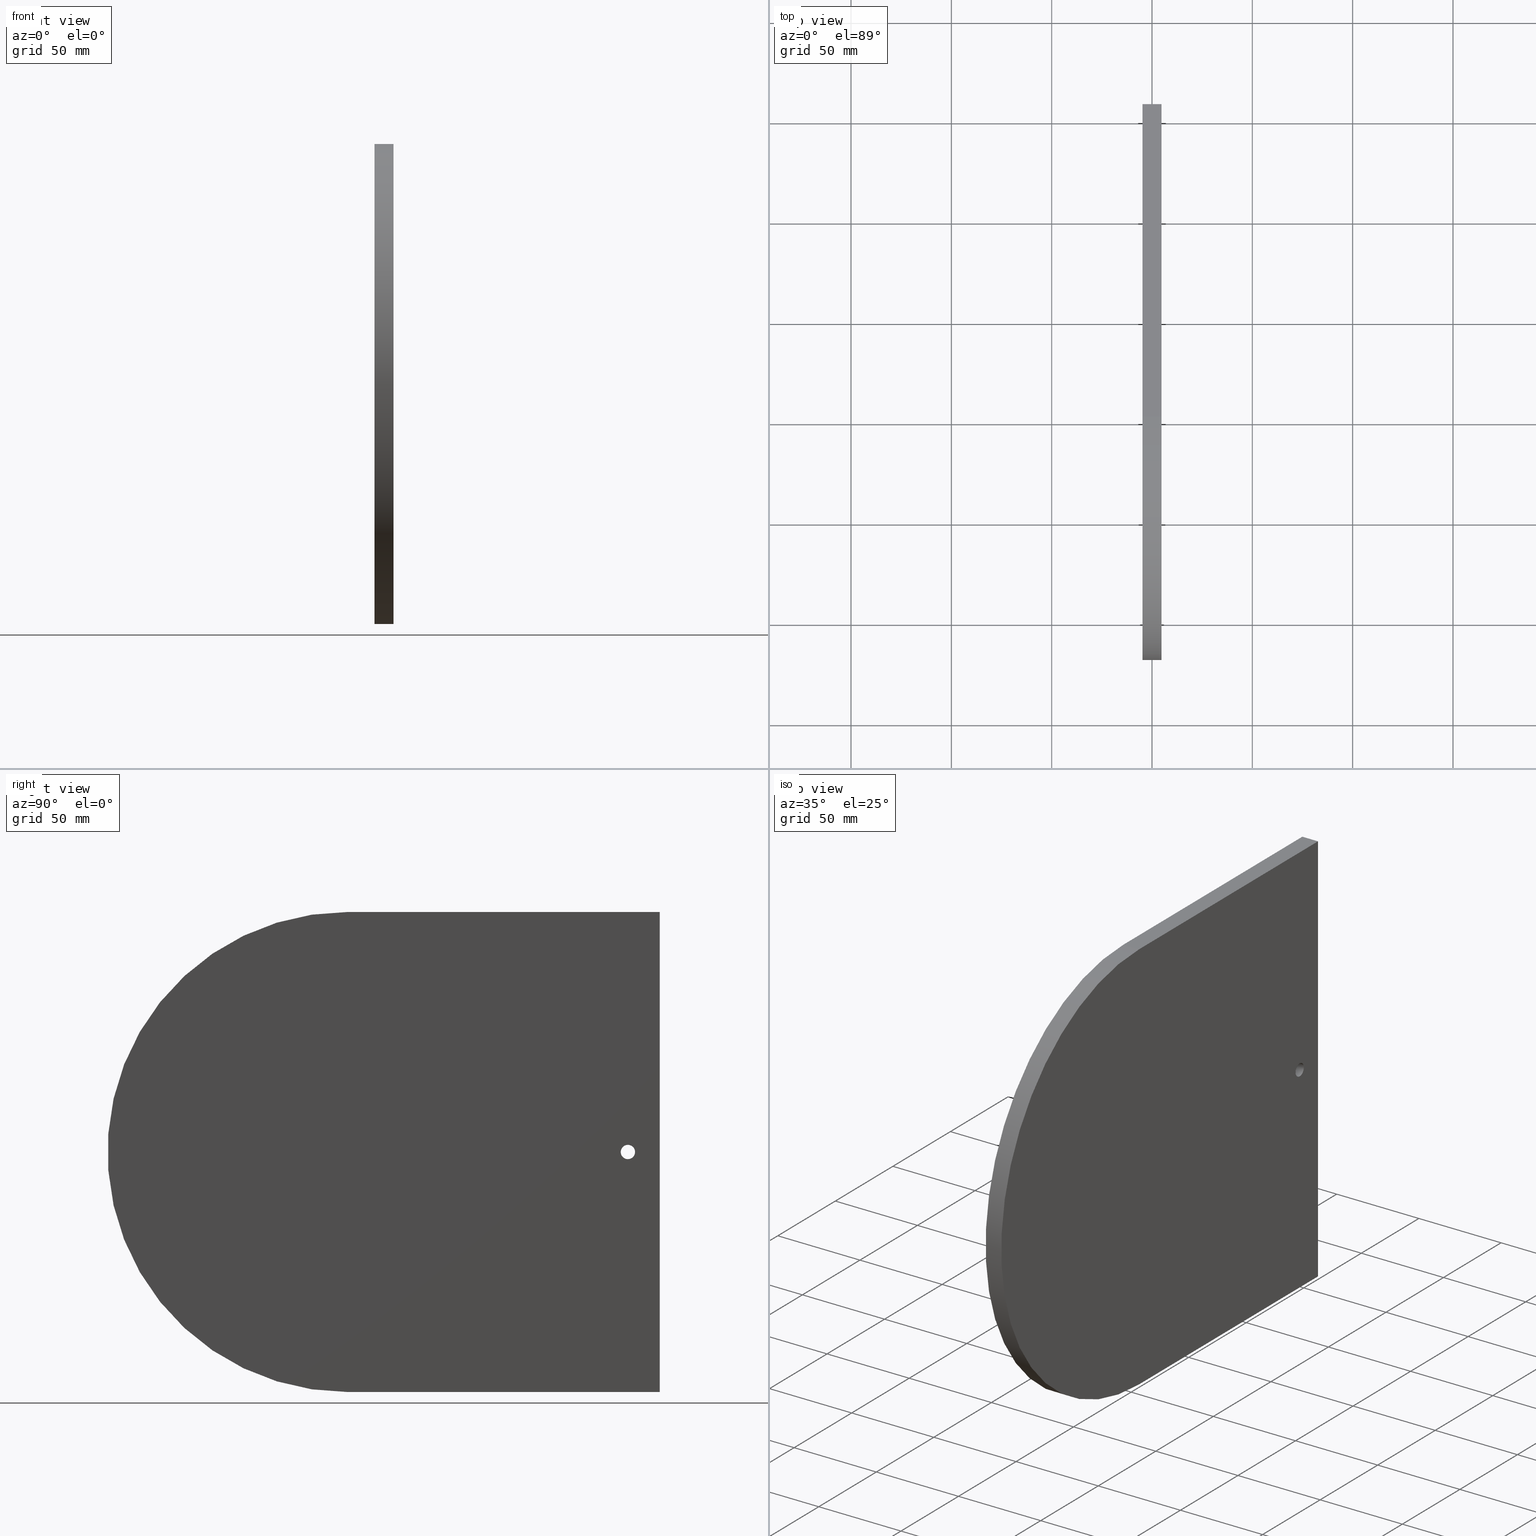
[diagram: canonical four-view strip — front | top / right | iso, engineering-drawing reading convention]
A machine part, canonical four-view strip (front | top / right | iso — engineering-drawing reading convention). The complete STEP part file that produces these views, byte-faithful:
ISO-10303-21;
HEADER;
FILE_DESCRIPTION (( 'STEP AP203' ),
    '1' );
FILE_NAME ('D080366-v1_aLIGO_VE_Viewport Guard Shield.STEP',
    '2009-12-22T20:03:17',
    ( ' ' ),
    ( ' ' ),
    'SwSTEP 2.0',
    'SolidWorks 2009',
    '' );
FILE_SCHEMA (( 'CONFIG_CONTROL_DESIGN' ));
ENDSEC;

DATA;
#1 = ORIENTED_EDGE ( 'NONE', *, *, #2, .F. ) ;
#2 = EDGE_CURVE ( 'NONE', #3, #73, #139, .T. ) ;
#3 = VERTEX_POINT ( 'NONE', #135 ) ;
#4 = ORIENTED_EDGE ( 'NONE', *, *, #5, .T. ) ;
#5 = EDGE_CURVE ( 'NONE', #3, #6, #134, .T. ) ;
#6 = VERTEX_POINT ( 'NONE', #130 ) ;
#7 = ORIENTED_EDGE ( 'NONE', *, *, #8, .T. ) ;
#8 = EDGE_CURVE ( 'NONE', #6, #72, #129, .T. ) ;
#9 = ADVANCED_FACE ( 'NONE', ( #125 ), #124, .F. ) ;
#10 = EDGE_LOOP ( 'NONE', ( #11, #16, #18, #151 ) ) ;
#11 = ORIENTED_EDGE ( 'NONE', *, *, #12, .F. ) ;
#12 = EDGE_CURVE ( 'NONE', #13, #14, #119, .T. ) ;
#13 = VERTEX_POINT ( 'NONE', #115 ) ;
#14 = VERTEX_POINT ( 'NONE', #114 ) ;
#15 = VERTEX_POINT ( 'NONE', #113 ) ;
#16 = ORIENTED_EDGE ( 'NONE', *, *, #17, .F. ) ;
#17 = EDGE_CURVE ( 'NONE', #15, #13, #112, .T. ) ;
#18 = ORIENTED_EDGE ( 'NONE', *, *, #19, .T. ) ;
#19 = EDGE_CURVE ( 'NONE', #15, #150, #108, .T. ) ;
#20 = MANIFOLD_SOLID_BREP ( 'NONE', #87 ) ;
#21 = ADVANCED_FACE ( 'NONE', ( #104 ), #103, .F. ) ;
#22 = EDGE_LOOP ( 'NONE', ( #23, #27, #30, #66 ) ) ;
#23 = ORIENTED_EDGE ( 'NONE', *, *, #24, .F. ) ;
#24 = EDGE_CURVE ( 'NONE', #25, #26, #60, .T. ) ;
#25 = VERTEX_POINT ( 'NONE', #55 ) ;
#26 = VERTEX_POINT ( 'NONE', #54 ) ;
#27 = ORIENTED_EDGE ( 'NONE', *, *, #28, .T. ) ;
#28 = EDGE_CURVE ( 'NONE', #25, #29, #53, .T. ) ;
#29 = VERTEX_POINT ( 'NONE', #49 ) ;
#30 = ORIENTED_EDGE ( 'NONE', *, *, #64, .T. ) ;
#31 = EDGE_CURVE ( 'NONE', #13, #73, #48, .T. ) ;
#32 = ORIENTED_EDGE ( 'NONE', *, *, #12, .T. ) ;
#33 = ORIENTED_EDGE ( 'NONE', *, *, #31, .F. ) ;
#34 = DIRECTION ( 'NONE',  ( 1.000000000000000000, -0.0000000000000000000, -0.0000000000000000000 ) ) ;
#35 = VECTOR ( 'NONE', #34, 39.37007874015748100 ) ;
#36 = CARTESIAN_POINT ( 'NONE',  ( -0.1875000000000000300, 5.500000000000000000, -0.1406250000000001400 ) ) ;
#37 = LINE ( 'NONE', #36, #35 ) ;
#38 = CARTESIAN_POINT ( 'NONE',  ( 0.1875000000000000300, 5.500000000000000000, -0.1406250000000001400 ) ) ;
#39 = DIRECTION ( 'NONE',  ( 0.0000000000000000000, 0.0000000000000000000, -1.000000000000000000 ) ) ;
#40 = DIRECTION ( 'NONE',  ( 1.000000000000000000, 0.0000000000000000000, 0.0000000000000000000 ) ) ;
#41 = CARTESIAN_POINT ( 'NONE',  ( 0.1875000000000000300, 5.500000000000000000, 0.0000000000000000000 ) ) ;
#42 = AXIS2_PLACEMENT_3D ( 'NONE', #41, #40, #39 ) ;
#43 = CIRCLE ( 'NONE', #42, 0.1406250000000001400 ) ;
#44 = DIRECTION ( 'NONE',  ( 0.0000000000000000000, 0.0000000000000000000, -1.000000000000000000 ) ) ;
#45 = DIRECTION ( 'NONE',  ( -1.000000000000000000, -0.0000000000000000000, -0.0000000000000000000 ) ) ;
#46 = CARTESIAN_POINT ( 'NONE',  ( 0.1875000000000000300, 0.0000000000000000000, 0.0000000000000000000 ) ) ;
#47 = AXIS2_PLACEMENT_3D ( 'NONE', #46, #45, #44 ) ;
#48 = CIRCLE ( 'NONE', #47, 4.709374999999999600 ) ;
#49 = CARTESIAN_POINT ( 'NONE',  ( 0.1875000000000000300, 5.500000000000000000, 0.1406250000000001400 ) ) ;
#50 = DIRECTION ( 'NONE',  ( 1.000000000000000000, -0.0000000000000000000, -0.0000000000000000000 ) ) ;
#51 = VECTOR ( 'NONE', #50, 39.37007874015748100 ) ;
#52 = CARTESIAN_POINT ( 'NONE',  ( -0.1875000000000000300, 5.500000000000000000, 0.1406250000000001400 ) ) ;
#53 = LINE ( 'NONE', #52, #51 ) ;
#54 = CARTESIAN_POINT ( 'NONE',  ( -0.1875000000000000300, 5.500000000000000000, -0.1406250000000001400 ) ) ;
#55 = CARTESIAN_POINT ( 'NONE',  ( -0.1875000000000000300, 5.500000000000000000, 0.1406250000000001400 ) ) ;
#56 = DIRECTION ( 'NONE',  ( 0.0000000000000000000, 0.0000000000000000000, -1.000000000000000000 ) ) ;
#57 = DIRECTION ( 'NONE',  ( 1.000000000000000000, 0.0000000000000000000, 0.0000000000000000000 ) ) ;
#58 = CARTESIAN_POINT ( 'NONE',  ( -0.1875000000000000300, 5.500000000000000000, 0.0000000000000000000 ) ) ;
#59 = AXIS2_PLACEMENT_3D ( 'NONE', #58, #57, #56 ) ;
#60 = CIRCLE ( 'NONE', #59, 0.1406250000000001400 ) ;
#61 = DIRECTION ( 'NONE',  ( 0.0000000000000000000, 0.0000000000000000000, -1.000000000000000000 ) ) ;
#62 = DIRECTION ( 'NONE',  ( 1.000000000000000000, -0.0000000000000000000, -0.0000000000000000000 ) ) ;
#63 = AXIS2_PLACEMENT_3D ( 'NONE', #102, #62, #61 ) ;
#64 = EDGE_CURVE ( 'NONE', #29, #65, #43, .T. ) ;
#65 = VERTEX_POINT ( 'NONE', #38 ) ;
#66 = ORIENTED_EDGE ( 'NONE', *, *, #67, .F. ) ;
#67 = EDGE_CURVE ( 'NONE', #26, #65, #37, .T. ) ;
#68 = ADVANCED_FACE ( 'NONE', ( #179 ), #181, .F. ) ;
#69 = EDGE_LOOP ( 'NONE', ( #70, #1, #4, #7 ) ) ;
#70 = ORIENTED_EDGE ( 'NONE', *, *, #71, .T. ) ;
#71 = EDGE_CURVE ( 'NONE', #72, #73, #177, .T. ) ;
#72 = VERTEX_POINT ( 'NONE', #315 ) ;
#73 = VERTEX_POINT ( 'NONE', #314 ) ;
#74 = ORIENTED_EDGE ( 'NONE', *, *, #88, .F. ) ;
#75 = ORIENTED_EDGE ( 'NONE', *, *, #17, .T. ) ;
#76 = ORIENTED_EDGE ( 'NONE', *, *, #31, .T. ) ;
#77 = ORIENTED_EDGE ( 'NONE', *, *, #71, .F. ) ;
#78 = ADVANCED_FACE ( 'NONE', ( #313 ), #312, .F. ) ;
#79 = EDGE_LOOP ( 'NONE', ( #80, #81, #82, #86 ) ) ;
#80 = ORIENTED_EDGE ( 'NONE', *, *, #28, .F. ) ;
#81 = ORIENTED_EDGE ( 'NONE', *, *, #96, .F. ) ;
#82 = ORIENTED_EDGE ( 'NONE', *, *, #67, .T. ) ;
#83 = ORIENTED_EDGE ( 'NONE', *, *, #88, .T. ) ;
#84 = ADVANCED_FACE ( 'NONE', ( #168 ), #174, .T. ) ;
#85 = EDGE_LOOP ( 'NONE', ( #76, #77, #74, #75 ) ) ;
#86 = ORIENTED_EDGE ( 'NONE', *, *, #149, .T. ) ;
#87 = CLOSED_SHELL ( 'NONE', ( #21, #68, #9, #153, #146, #94, #84, #78 ) ) ;
#88 = EDGE_CURVE ( 'NONE', #15, #72, #169, .T. ) ;
#89 = ORIENTED_EDGE ( 'NONE', *, *, #8, .F. ) ;
#90 = ORIENTED_EDGE ( 'NONE', *, *, #19, .F. ) ;
#91 = ORIENTED_EDGE ( 'NONE', *, *, #141, .F. ) ;
#92 = EDGE_LOOP ( 'NONE', ( #95, #97 ) ) ;
#93 = ORIENTED_EDGE ( 'NONE', *, *, #2, .T. ) ;
#94 = ADVANCED_FACE ( 'NONE', ( #307, #306 ), #303, .F. ) ;
#95 = ORIENTED_EDGE ( 'NONE', *, *, #96, .T. ) ;
#96 = EDGE_CURVE ( 'NONE', #26, #25, #159, .T. ) ;
#97 = ORIENTED_EDGE ( 'NONE', *, *, #24, .T. ) ;
#98 = EDGE_LOOP ( 'NONE', ( #90, #83, #89, #91 ) ) ;
#99 = ORIENTED_EDGE ( 'NONE', *, *, #144, .T. ) ;
#100 = ORIENTED_EDGE ( 'NONE', *, *, #64, .F. ) ;
#101 = EDGE_LOOP ( 'NONE', ( #33, #32, #99, #93 ) ) ;
#102 = CARTESIAN_POINT ( 'NONE',  ( -0.1875000000000000300, 5.500000000000000000, 0.0000000000000000000 ) ) ;
#103 = CYLINDRICAL_SURFACE ( 'NONE', #63, 0.1406250000000001400 ) ;
#104 = FACE_OUTER_BOUND ( 'NONE', #22, .T. ) ;
#105 = DIRECTION ( 'NONE',  ( -0.0000000000000000000, 1.000000000000000000, 4.460159989655940100E-017 ) ) ;
#106 = VECTOR ( 'NONE', #105, 39.37007874015748100 ) ;
#107 = CARTESIAN_POINT ( 'NONE',  ( -0.1875000000000000300, 6.125000000000000000, -4.709374999999999600 ) ) ;
#108 = LINE ( 'NONE', #107, #106 ) ;
#109 = DIRECTION ( 'NONE',  ( 1.000000000000000000, -0.0000000000000000000, -0.0000000000000000000 ) ) ;
#110 = VECTOR ( 'NONE', #109, 39.37007874015748100 ) ;
#111 = CARTESIAN_POINT ( 'NONE',  ( -0.1875000000000000300, 0.0000000000000000000, -4.709374999999999600 ) ) ;
#112 = LINE ( 'NONE', #111, #110 ) ;
#113 = CARTESIAN_POINT ( 'NONE',  ( -0.1875000000000000300, 0.0000000000000000000, -4.709374999999999600 ) ) ;
#114 = CARTESIAN_POINT ( 'NONE',  ( 0.1875000000000000300, 6.125000000000000000, -4.709374999999999600 ) ) ;
#115 = CARTESIAN_POINT ( 'NONE',  ( 0.1875000000000000300, 0.0000000000000000000, -4.709374999999999600 ) ) ;
#116 = DIRECTION ( 'NONE',  ( -0.0000000000000000000, 1.000000000000000000, 4.460159989655940100E-017 ) ) ;
#117 = VECTOR ( 'NONE', #116, 39.37007874015748100 ) ;
#118 = CARTESIAN_POINT ( 'NONE',  ( 0.1875000000000000300, 6.125000000000000000, -4.709374999999999600 ) ) ;
#119 = LINE ( 'NONE', #118, #117 ) ;
#120 = DIRECTION ( 'NONE',  ( 0.0000000000000000000, -1.000000000000000000, -4.460159989655940700E-017 ) ) ;
#121 = DIRECTION ( 'NONE',  ( 0.0000000000000000000, -4.460159989655940700E-017, 1.000000000000000000 ) ) ;
#122 = CARTESIAN_POINT ( 'NONE',  ( 0.1875000000000000300, 6.125000000000000000, -4.709374999999999600 ) ) ;
#123 = AXIS2_PLACEMENT_3D ( 'NONE', #122, #121, #120 ) ;
#124 = PLANE ( 'NONE',  #123 ) ;
#125 = FACE_OUTER_BOUND ( 'NONE', #10, .T. ) ;
#126 = DIRECTION ( 'NONE',  ( 0.0000000000000000000, -1.000000000000000000, -1.338047996896781900E-016 ) ) ;
#127 = VECTOR ( 'NONE', #126, 39.37007874015748100 ) ;
#128 = CARTESIAN_POINT ( 'NONE',  ( -0.1875000000000000300, 6.125000000000000000, 4.709374999999999600 ) ) ;
#129 = LINE ( 'NONE', #128, #127 ) ;
#130 = CARTESIAN_POINT ( 'NONE',  ( -0.1875000000000000300, 6.125000000000000000, 4.709374999999999600 ) ) ;
#131 = DIRECTION ( 'NONE',  ( -1.000000000000000000, -0.0000000000000000000, -0.0000000000000000000 ) ) ;
#132 = VECTOR ( 'NONE', #131, 39.37007874015748100 ) ;
#133 = CARTESIAN_POINT ( 'NONE',  ( 0.1875000000000000300, 6.125000000000000000, 4.709374999999999600 ) ) ;
#134 = LINE ( 'NONE', #133, #132 ) ;
#135 = CARTESIAN_POINT ( 'NONE',  ( 0.1875000000000000300, 6.125000000000000000, 4.709374999999999600 ) ) ;
#136 = DIRECTION ( 'NONE',  ( 0.0000000000000000000, -1.000000000000000000, -1.338047996896781900E-016 ) ) ;
#137 = VECTOR ( 'NONE', #136, 39.37007874015748100 ) ;
#138 = CARTESIAN_POINT ( 'NONE',  ( 0.1875000000000000300, 6.125000000000000000, 4.709374999999999600 ) ) ;
#139 = LINE ( 'NONE', #138, #137 ) ;
#140 = ORIENTED_EDGE ( 'NONE', *, *, #141, .T. ) ;
#141 = EDGE_CURVE ( 'NONE', #150, #6, #160, .T. ) ;
#142 = ORIENTED_EDGE ( 'NONE', *, *, #5, .F. ) ;
#143 = ORIENTED_EDGE ( 'NONE', *, *, #144, .F. ) ;
#144 = EDGE_CURVE ( 'NONE', #14, #3, #298, .T. ) ;
#145 = ORIENTED_EDGE ( 'NONE', *, *, #152, .T. ) ;
#146 = ADVANCED_FACE ( 'NONE', ( #294, #293 ), #292, .T. ) ;
#147 = EDGE_LOOP ( 'NONE', ( #148, #100 ) ) ;
#148 = ORIENTED_EDGE ( 'NONE', *, *, #149, .F. ) ;
#149 = EDGE_CURVE ( 'NONE', #65, #29, #246, .T. ) ;
#150 = VERTEX_POINT ( 'NONE', #239 ) ;
#151 = ORIENTED_EDGE ( 'NONE', *, *, #152, .F. ) ;
#152 = EDGE_CURVE ( 'NONE', #14, #150, #238, .T. ) ;
#153 = ADVANCED_FACE ( 'NONE', ( #234 ), #233, .F. ) ;
#154 = EDGE_LOOP ( 'NONE', ( #140, #142, #143, #145 ) ) ;
#155 = PRODUCT_DEFINITION_SHAPE ( 'NONE', 'NONE',  #208 ) ;
#156 = DIRECTION ( 'NONE',  ( 1.000000000000000000, 0.0000000000000000000, 0.0000000000000000000 ) ) ;
#157 = CARTESIAN_POINT ( 'NONE',  ( -0.1875000000000000300, 5.500000000000000000, 0.0000000000000000000 ) ) ;
#158 = AXIS2_PLACEMENT_3D ( 'NONE', #157, #156, #302 ) ;
#159 = CIRCLE ( 'NONE', #158, 0.1406250000000001400 ) ;
#160 = LINE ( 'NONE', #301, #300 ) ;
#161 = DIRECTION ( 'NONE',  ( 0.0000000000000000000, 0.0000000000000000000, -1.000000000000000000 ) ) ;
#162 = DIRECTION ( 'NONE',  ( 1.000000000000000000, 0.0000000000000000000, 0.0000000000000000000 ) ) ;
#163 = DIRECTION ( 'NONE',  ( 0.0000000000000000000, 0.0000000000000000000, -1.000000000000000000 ) ) ;
#164 = DIRECTION ( 'NONE',  ( 1.000000000000000000, -0.0000000000000000000, -0.0000000000000000000 ) ) ;
#165 = CARTESIAN_POINT ( 'NONE',  ( -0.1875000000000000300, 5.500000000000000000, 0.0000000000000000000 ) ) ;
#166 = AXIS2_PLACEMENT_3D ( 'NONE', #165, #164, #163 ) ;
#167 = DIRECTION ( 'NONE',  ( 1.000000000000000000, -0.0000000000000000000, -0.0000000000000000000 ) ) ;
#168 = FACE_OUTER_BOUND ( 'NONE', #85, .T. ) ;
#169 = CIRCLE ( 'NONE', #310, 4.709374999999999600 ) ;
#170 = CARTESIAN_POINT ( 'NONE',  ( -0.1875000000000000300, 0.0000000000000000000, 0.0000000000000000000 ) ) ;
#171 = DIRECTION ( 'NONE',  ( 0.0000000000000000000, 0.0000000000000000000, -1.000000000000000000 ) ) ;
#172 = AXIS2_PLACEMENT_3D ( 'NONE', #173, #167, #171 ) ;
#173 = CARTESIAN_POINT ( 'NONE',  ( -0.1875000000000000300, 0.0000000000000000000, 0.0000000000000000000 ) ) ;
#174 = CYLINDRICAL_SURFACE ( 'NONE', #172, 4.709374999999999600 ) ;
#175 = VECTOR ( 'NONE', #316, 39.37007874015748100 ) ;
#176 = CARTESIAN_POINT ( 'NONE',  ( -0.1875000000000000300, 0.0000000000000000000, 4.709374999999999600 ) ) ;
#177 = LINE ( 'NONE', #176, #175 ) ;
#178 = DIRECTION ( 'NONE',  ( 0.0000000000000000000, 1.000000000000000000, 1.338047996896782200E-016 ) ) ;
#179 = FACE_OUTER_BOUND ( 'NONE', #69, .T. ) ;
#180 = AXIS2_PLACEMENT_3D ( 'NONE', #188, #187, #178 ) ;
#181 = PLANE ( 'NONE',  #180 ) ;
#182 = APPLICATION_CONTEXT ( 'configuration controlled 3d designs of mechanical parts and assemblies' ) ;
#183 = ADVANCED_BREP_SHAPE_REPRESENTATION ( 'D080366-v1_aLIGO_VE_Viewport Guard Shield', ( #20, #223 ), #184 ) ;
#184 =( GEOMETRIC_REPRESENTATION_CONTEXT ( 3 ) GLOBAL_UNCERTAINTY_ASSIGNED_CONTEXT ( ( #185 ) ) GLOBAL_UNIT_ASSIGNED_CONTEXT ( ( #225, #224, #186 ) ) REPRESENTATION_CONTEXT ( 'NONE', 'WORKASPACE' ) );
#185 = UNCERTAINTY_MEASURE_WITH_UNIT (LENGTH_MEASURE( 1.000000000000000100E-005 ), #225, 'distance_accuracy_value', 'NONE');
#186 =( NAMED_UNIT ( * ) SI_UNIT ( $, .STERADIAN. ) SOLID_ANGLE_UNIT ( ) );
#187 = DIRECTION ( 'NONE',  ( 0.0000000000000000000, 1.338047996896782200E-016, -1.000000000000000000 ) ) ;
#188 = CARTESIAN_POINT ( 'NONE',  ( 0.1875000000000000300, 6.125000000000000000, 4.709374999999999600 ) ) ;
#189 = DATE_TIME_ROLE ( 'creation_date' ) ;
#190 = DATE_AND_TIME ( #191, #192 ) ;
#191 = CALENDAR_DATE ( 2009, 22, 12 ) ;
#192 = LOCAL_TIME ( 14, 3, 17.00000000000000000, #193 ) ;
#193 = COORDINATED_UNIVERSAL_TIME_OFFSET ( 6, 0, .BEHIND. ) ;
#194 = CC_DESIGN_PERSON_AND_ORGANIZATION_ASSIGNMENT ( #196, #195, ( #208 ) ) ;
#195 = PERSON_AND_ORGANIZATION_ROLE ( 'creator' ) ;
#196 = PERSON_AND_ORGANIZATION ( #216, #215 ) ;
#197 = CC_DESIGN_APPROVAL ( #205, ( #208 ) ) ;
#198 = APPROVAL_DATE_TIME ( #199, #205 ) ;
#199 = DATE_AND_TIME ( #200, #201 ) ;
#200 = CALENDAR_DATE ( 2009, 22, 12 ) ;
#201 = LOCAL_TIME ( 14, 3, 17.00000000000000000, #202 ) ;
#202 = COORDINATED_UNIVERSAL_TIME_OFFSET ( 6, 0, .BEHIND. ) ;
#203 = APPROVAL_PERSON_ORGANIZATION ( #207, #205, #204 ) ;
#204 = APPROVAL_ROLE ( '' ) ;
#205 = APPROVAL ( #206, 'UNSPECIFIED' ) ;
#206 = APPROVAL_STATUS ( 'not_yet_approved' ) ;
#207 = PERSON_AND_ORGANIZATION ( #216, #215 ) ;
#208 = PRODUCT_DEFINITION ( 'UNKNOWN', '', #290, #209 ) ;
#209 = DESIGN_CONTEXT ( 'detailed design', #211, 'design' ) ;
#210 = APPLICATION_PROTOCOL_DEFINITION ( 'international standard', 'config_control_design', 1994, #211 ) ;
#211 = APPLICATION_CONTEXT ( 'configuration controlled 3d designs of mechanical parts and assemblies' ) ;
#212 = CC_DESIGN_PERSON_AND_ORGANIZATION_ASSIGNMENT ( #214, #213, ( #217 ) ) ;
#213 = PERSON_AND_ORGANIZATION_ROLE ( 'design_owner' ) ;
#214 = PERSON_AND_ORGANIZATION ( #216, #215 ) ;
#215 = ORGANIZATION ( 'UNSPECIFIED', 'UNSPECIFIED', '' ) ;
#216 = PERSON ( 'UNSPECIFIED', 'UNSPECIFIED', 'UNSPECIFIED', ('UNSPECIFIED'), ('UNSPECIFIED'), ('UNSPECIFIED') ) ;
#217 = PRODUCT ( 'D080366-v1_aLIGO_VE_Viewport Guard Shield', 'D080366-v1_aLIGO_VE_Viewport Guard Shield', '', ( #218 ) ) ;
#218 = MECHANICAL_CONTEXT ( 'NONE', #182, 'mechanical' ) ;
#219 = APPLICATION_PROTOCOL_DEFINITION ( 'international standard', 'config_control_design', 1994, #182 ) ;
#220 = DIRECTION ( 'NONE',  ( 0.0000000000000000000, 0.0000000000000000000, 1.000000000000000000 ) ) ;
#221 = DIRECTION ( 'NONE',  ( 1.000000000000000000, 0.0000000000000000000, 0.0000000000000000000 ) ) ;
#222 = CARTESIAN_POINT ( 'NONE',  ( 0.0000000000000000000, 0.0000000000000000000, 0.0000000000000000000 ) ) ;
#223 = AXIS2_PLACEMENT_3D ( 'NONE', #222, #220, #221 ) ;
#224 =( NAMED_UNIT ( * ) PLANE_ANGLE_UNIT ( ) SI_UNIT ( $, .RADIAN. ) );
#225 =( CONVERSION_BASED_UNIT ( 'INCH', #226 ) LENGTH_UNIT ( ) NAMED_UNIT ( #227 ) );
#226 = LENGTH_MEASURE_WITH_UNIT ( LENGTH_MEASURE( 0.02539999999999999900 ), #228 );
#227 = DIMENSIONAL_EXPONENTS ( 1.000000000000000000, 0.0000000000000000000, 0.0000000000000000000, 0.0000000000000000000, 0.0000000000000000000, 0.0000000000000000000, 0.0000000000000000000 ) ;
#228 =( LENGTH_UNIT ( ) NAMED_UNIT ( * ) SI_UNIT ( $, .METRE. ) );
#229 = DIRECTION ( 'NONE',  ( 0.0000000000000000000, -0.0000000000000000000, -1.000000000000000000 ) ) ;
#230 = DIRECTION ( 'NONE',  ( 0.0000000000000000000, -1.000000000000000000, 0.0000000000000000000 ) ) ;
#231 = CARTESIAN_POINT ( 'NONE',  ( 0.1875000000000000300, 6.125000000000000000, 4.709374999999999600 ) ) ;
#232 = AXIS2_PLACEMENT_3D ( 'NONE', #231, #230, #229 ) ;
#233 = PLANE ( 'NONE',  #232 ) ;
#234 = FACE_OUTER_BOUND ( 'NONE', #154, .T. ) ;
#235 = DIRECTION ( 'NONE',  ( -1.000000000000000000, -0.0000000000000000000, -0.0000000000000000000 ) ) ;
#236 = VECTOR ( 'NONE', #235, 39.37007874015748100 ) ;
#237 = CARTESIAN_POINT ( 'NONE',  ( 0.1875000000000000300, 6.125000000000000000, -4.709374999999999600 ) ) ;
#238 = LINE ( 'NONE', #237, #236 ) ;
#239 = CARTESIAN_POINT ( 'NONE',  ( -0.1875000000000000300, 6.125000000000000000, -4.709374999999999600 ) ) ;
#240 = DIRECTION ( 'NONE',  ( 0.0000000000000000000, 0.0000000000000000000, -1.000000000000000000 ) ) ;
#241 = DIRECTION ( 'NONE',  ( 1.000000000000000000, 0.0000000000000000000, 0.0000000000000000000 ) ) ;
#242 = CARTESIAN_POINT ( 'NONE',  ( 0.1875000000000000300, 5.500000000000000000, 0.0000000000000000000 ) ) ;
#243 = AXIS2_PLACEMENT_3D ( 'NONE', #242, #241, #240 ) ;
#244 = DIRECTION ( 'NONE',  ( 0.0000000000000000000, 0.0000000000000000000, -1.000000000000000000 ) ) ;
#245 = DIRECTION ( 'NONE',  ( 1.000000000000000000, 0.0000000000000000000, 0.0000000000000000000 ) ) ;
#246 = CIRCLE ( 'NONE', #243, 0.1406250000000001400 ) ;
#247 = CARTESIAN_POINT ( 'NONE',  ( 0.1875000000000000300, -6.125000000000000000, 4.709374999999997900 ) ) ;
#248 = AXIS2_PLACEMENT_3D ( 'NONE', #247, #245, #244 ) ;
#249 = PRODUCT_RELATED_PRODUCT_CATEGORY ( 'detail', '', ( #217 ) ) ;
#250 = CC_DESIGN_SECURITY_CLASSIFICATION ( #271, ( #290 ) ) ;
#251 = CC_DESIGN_APPROVAL ( #259, ( #271 ) ) ;
#252 = APPROVAL_DATE_TIME ( #253, #259 ) ;
#253 = DATE_AND_TIME ( #254, #255 ) ;
#254 = CALENDAR_DATE ( 2009, 22, 12 ) ;
#255 = LOCAL_TIME ( 14, 3, 17.00000000000000000, #256 ) ;
#256 = COORDINATED_UNIVERSAL_TIME_OFFSET ( 6, 0, .BEHIND. ) ;
#257 = APPROVAL_PERSON_ORGANIZATION ( #261, #259, #258 ) ;
#258 = APPROVAL_ROLE ( '' ) ;
#259 = APPROVAL ( #260, 'UNSPECIFIED' ) ;
#260 = APPROVAL_STATUS ( 'not_yet_approved' ) ;
#261 = PERSON_AND_ORGANIZATION ( #216, #215 ) ;
#262 = CC_DESIGN_DATE_AND_TIME_ASSIGNMENT ( #264, #263, ( #271 ) ) ;
#263 = DATE_TIME_ROLE ( 'classification_date' ) ;
#264 = DATE_AND_TIME ( #265, #266 ) ;
#265 = CALENDAR_DATE ( 2009, 22, 12 ) ;
#266 = LOCAL_TIME ( 14, 3, 17.00000000000000000, #267 ) ;
#267 = COORDINATED_UNIVERSAL_TIME_OFFSET ( 6, 0, .BEHIND. ) ;
#268 = CC_DESIGN_PERSON_AND_ORGANIZATION_ASSIGNMENT ( #270, #269, ( #271 ) ) ;
#269 = PERSON_AND_ORGANIZATION_ROLE ( 'classification_officer' ) ;
#270 = PERSON_AND_ORGANIZATION ( #216, #215 ) ;
#271 = SECURITY_CLASSIFICATION ( '', '', #272 ) ;
#272 = SECURITY_CLASSIFICATION_LEVEL ( 'unclassified' ) ;
#273 = CC_DESIGN_PERSON_AND_ORGANIZATION_ASSIGNMENT ( #275, #274, ( #290 ) ) ;
#274 = PERSON_AND_ORGANIZATION_ROLE ( 'design_supplier' ) ;
#275 = PERSON_AND_ORGANIZATION ( #216, #215 ) ;
#276 = CC_DESIGN_PERSON_AND_ORGANIZATION_ASSIGNMENT ( #278, #277, ( #290 ) ) ;
#277 = PERSON_AND_ORGANIZATION_ROLE ( 'creator' ) ;
#278 = PERSON_AND_ORGANIZATION ( #216, #215 ) ;
#279 = CC_DESIGN_APPROVAL ( #287, ( #290 ) ) ;
#280 = APPROVAL_DATE_TIME ( #281, #287 ) ;
#281 = DATE_AND_TIME ( #282, #283 ) ;
#282 = CALENDAR_DATE ( 2009, 22, 12 ) ;
#283 = LOCAL_TIME ( 14, 3, 17.00000000000000000, #284 ) ;
#284 = COORDINATED_UNIVERSAL_TIME_OFFSET ( 6, 0, .BEHIND. ) ;
#285 = APPROVAL_PERSON_ORGANIZATION ( #289, #287, #286 ) ;
#286 = APPROVAL_ROLE ( '' ) ;
#287 = APPROVAL ( #288, 'UNSPECIFIED' ) ;
#288 = APPROVAL_STATUS ( 'not_yet_approved' ) ;
#289 = PERSON_AND_ORGANIZATION ( #216, #215 ) ;
#290 = PRODUCT_DEFINITION_FORMATION_WITH_SPECIFIED_SOURCE ( 'ANY', '', #217, .NOT_KNOWN. ) ;
#291 = CC_DESIGN_DATE_AND_TIME_ASSIGNMENT ( #190, #189, ( #208 ) ) ;
#292 = PLANE ( 'NONE',  #248 ) ;
#293 = FACE_OUTER_BOUND ( 'NONE', #101, .T. ) ;
#294 = FACE_BOUND ( 'NONE', #147, .T. ) ;
#295 = DIRECTION ( 'NONE',  ( -0.0000000000000000000, -0.0000000000000000000, 1.000000000000000000 ) ) ;
#296 = VECTOR ( 'NONE', #295, 39.37007874015748100 ) ;
#297 = CARTESIAN_POINT ( 'NONE',  ( 0.1875000000000000300, 6.125000000000000000, 4.709374999999999600 ) ) ;
#298 = LINE ( 'NONE', #297, #296 ) ;
#299 = DIRECTION ( 'NONE',  ( -0.0000000000000000000, -0.0000000000000000000, 1.000000000000000000 ) ) ;
#300 = VECTOR ( 'NONE', #299, 39.37007874015748100 ) ;
#301 = CARTESIAN_POINT ( 'NONE',  ( -0.1875000000000000300, 6.125000000000000000, 4.709374999999999600 ) ) ;
#302 = DIRECTION ( 'NONE',  ( 0.0000000000000000000, 0.0000000000000000000, -1.000000000000000000 ) ) ;
#303 = PLANE ( 'NONE',  #305 ) ;
#304 = CARTESIAN_POINT ( 'NONE',  ( -0.1875000000000000300, -6.125000000000000000, 4.709374999999997900 ) ) ;
#305 = AXIS2_PLACEMENT_3D ( 'NONE', #304, #162, #161 ) ;
#306 = FACE_OUTER_BOUND ( 'NONE', #98, .T. ) ;
#307 = FACE_BOUND ( 'NONE', #92, .T. ) ;
#308 = DIRECTION ( 'NONE',  ( 0.0000000000000000000, 0.0000000000000000000, -1.000000000000000000 ) ) ;
#309 = DIRECTION ( 'NONE',  ( -1.000000000000000000, -0.0000000000000000000, -0.0000000000000000000 ) ) ;
#310 = AXIS2_PLACEMENT_3D ( 'NONE', #170, #309, #308 ) ;
#311 = SHAPE_DEFINITION_REPRESENTATION ( #155, #183 ) ;
#312 = CYLINDRICAL_SURFACE ( 'NONE', #166, 0.1406250000000001400 ) ;
#313 = FACE_OUTER_BOUND ( 'NONE', #79, .T. ) ;
#314 = CARTESIAN_POINT ( 'NONE',  ( 0.1875000000000000300, 0.0000000000000000000, 4.709374999999999600 ) ) ;
#315 = CARTESIAN_POINT ( 'NONE',  ( -0.1875000000000000300, -6.301369785385781500E-016, 4.709374999999999600 ) ) ;
#316 = DIRECTION ( 'NONE',  ( 1.000000000000000000, -0.0000000000000000000, -0.0000000000000000000 ) ) ;
ENDSEC;
END-ISO-10303-21;
